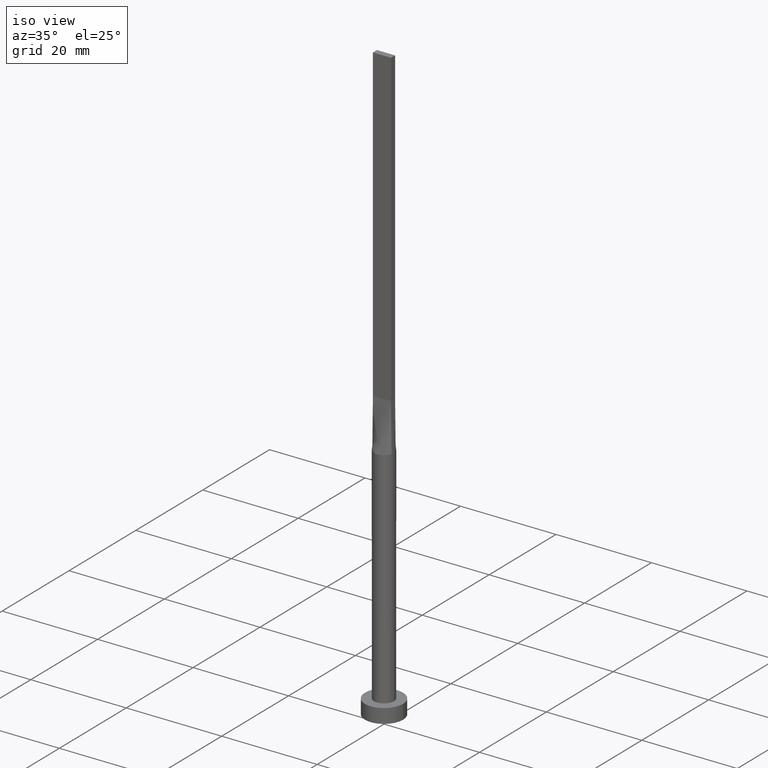
[diagram: clean part render]
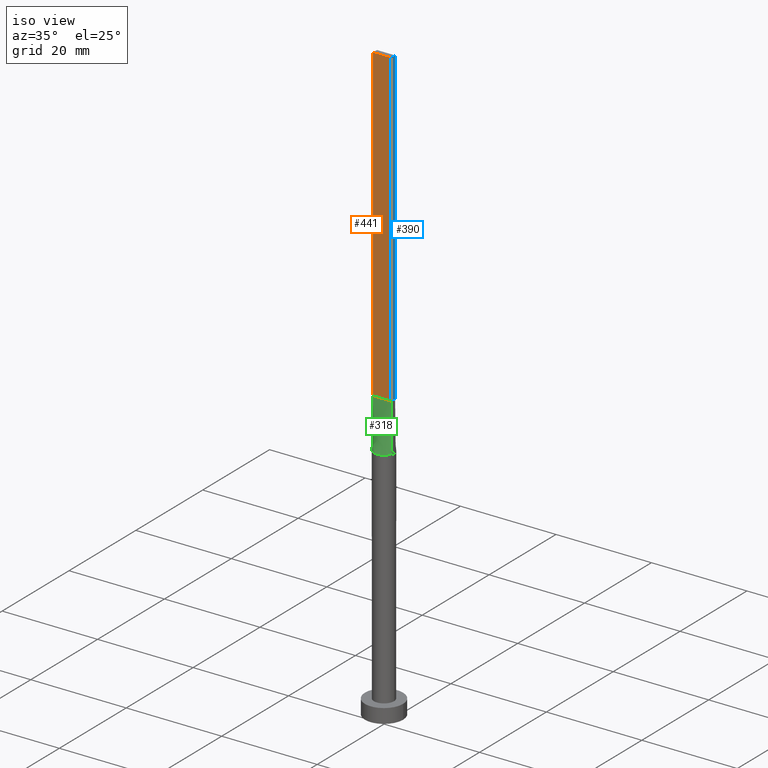
[diagram: same view with three faces highlighted in distinct colors, each labeled with its STEP entity id]
A machine part, iso view with three faces highlighted in distinct colors.
Their STEP definitions:

[orange] entity #441 — the highlighted planar face has unit normal (0, 1, -0).
#12 = DIRECTION ( 'NONE',  ( 5.706327223607920020E-17, 1.000000000000000000, -0.000000000000000000 ) ) ;
#26 = EDGE_CURVE ( 'NONE', #263, #111, #539, .T. ) ;
#39 = EDGE_CURVE ( 'NONE', #126, #111, #172, .T. ) ;
#46 = DIRECTION ( 'NONE',  ( -0.000000000000000000, -0.000000000000000000, -1.000000000000000000 ) ) ;
#73 = CARTESIAN_POINT ( 'NONE',  ( 1.899999999999999023, -0.5999999999999997558, 125.0000000000000000 ) ) ;
#88 = VECTOR ( 'NONE', #334, 1000.000000000000000 ) ;
#107 = AXIS2_PLACEMENT_3D ( 'NONE', #445, #12, #536 ) ;
#111 = VERTEX_POINT ( 'NONE', #363 ) ;
#126 = VERTEX_POINT ( 'NONE', #153 ) ;
#150 = ORIENTED_EDGE ( 'NONE', *, *, #325, .T. ) ;
#153 = CARTESIAN_POINT ( 'NONE',  ( -1.899999999999999911, -0.5999999999999995337, 60.00000000000000711 ) ) ;
#165 = VECTOR ( 'NONE', #494, 1000.000000000000000 ) ;
#172 = LINE ( 'NONE', #346, #165 ) ;
#184 = EDGE_LOOP ( 'NONE', ( #528, #189, #306, #150 ) ) ;
#189 = ORIENTED_EDGE ( 'NONE', *, *, #26, .F. ) ;
#230 = CARTESIAN_POINT ( 'NONE',  ( -1.899999999999999911, -0.5999999999999995337, 125.0000000000000000 ) ) ;
#263 = VERTEX_POINT ( 'NONE', #497 ) ;
#271 = CARTESIAN_POINT ( 'NONE',  ( -1.899999999999999911, -0.5999999999999995337, 125.0000000000000000 ) ) ;
#306 = ORIENTED_EDGE ( 'NONE', *, *, #486, .F. ) ;
#311 = LINE ( 'NONE', #230, #411 ) ;
#325 = EDGE_CURVE ( 'NONE', #576, #126, #531, .T. ) ;
#334 = DIRECTION ( 'NONE',  ( -0.000000000000000000, -0.000000000000000000, -1.000000000000000000 ) ) ;
#346 = CARTESIAN_POINT ( 'NONE',  ( -1.899999999999999911, -0.5999999999999995337, 60.00000000000000711 ) ) ;
#363 = CARTESIAN_POINT ( 'NONE',  ( 1.899999999999999023, -0.5999999999999997558, 60.00000000000000711 ) ) ;
#381 = FACE_OUTER_BOUND ( 'NONE', #184, .T. ) ;
#405 = DIRECTION ( 'NONE',  ( 1.000000000000000000, -5.706327223607920020E-17, 0.000000000000000000 ) ) ;
#411 = VECTOR ( 'NONE', #405, 1000.000000000000000 ) ;
#432 = PLANE ( 'NONE',  #107 ) ;
#441 = ADVANCED_FACE ( 'NONE', ( #381 ), #432, .F. ) ;
#445 = CARTESIAN_POINT ( 'NONE',  ( -1.899999999999999911, -0.5999999999999995337, 125.0000000000000000 ) ) ;
#469 = VECTOR ( 'NONE', #46, 1000.000000000000000 ) ;
#486 = EDGE_CURVE ( 'NONE', #576, #263, #311, .T. ) ;
#488 = CARTESIAN_POINT ( 'NONE',  ( -1.899999999999999911, -0.5999999999999995337, 125.0000000000000000 ) ) ;
#494 = DIRECTION ( 'NONE',  ( 1.000000000000000000, -5.706327223607918787E-17, 0.000000000000000000 ) ) ;
#497 = CARTESIAN_POINT ( 'NONE',  ( 1.899999999999999023, -0.5999999999999997558, 125.0000000000000000 ) ) ;
#528 = ORIENTED_EDGE ( 'NONE', *, *, #39, .T. ) ;
#531 = LINE ( 'NONE', #488, #469 ) ;
#536 = DIRECTION ( 'NONE',  ( -1.000000000000000000, 5.706327223607920020E-17, 0.000000000000000000 ) ) ;
#539 = LINE ( 'NONE', #73, #88 ) ;
#576 = VERTEX_POINT ( 'NONE', #271 ) ;

[blue] entity #390 — the highlighted planar face has unit normal (-1, 0, 0).
#1 = EDGE_CURVE ( 'NONE', #111, #281, #47, .T. ) ;
#26 = EDGE_CURVE ( 'NONE', #263, #111, #539, .T. ) ;
#41 = DIRECTION ( 'NONE',  ( -5.421010862427522170E-16, -1.000000000000000000, 0.000000000000000000 ) ) ;
#42 = EDGE_CURVE ( 'NONE', #263, #298, #336, .T. ) ;
#47 = LINE ( 'NONE', #474, #272 ) ;
#73 = CARTESIAN_POINT ( 'NONE',  ( 1.899999999999999023, -0.5999999999999997558, 125.0000000000000000 ) ) ;
#88 = VECTOR ( 'NONE', #334, 1000.000000000000000 ) ;
#101 = CARTESIAN_POINT ( 'NONE',  ( 1.899999999999999023, -0.5999999999999997558, 125.0000000000000000 ) ) ;
#109 = CARTESIAN_POINT ( 'NONE',  ( 1.899999999999999023, -0.5999999999999997558, 125.0000000000000000 ) ) ;
#111 = VERTEX_POINT ( 'NONE', #363 ) ;
#139 = VECTOR ( 'NONE', #181, 1000.000000000000000 ) ;
#147 = DIRECTION ( 'NONE',  ( -1.000000000000000000, 5.421010862427522170E-16, 0.000000000000000000 ) ) ;
#151 = CARTESIAN_POINT ( 'NONE',  ( 1.899999999999999689, 0.6000000000000001998, 60.00000000000000711 ) ) ;
#181 = DIRECTION ( 'NONE',  ( -0.000000000000000000, -0.000000000000000000, -1.000000000000000000 ) ) ;
#183 = LINE ( 'NONE', #414, #139 ) ;
#236 = CARTESIAN_POINT ( 'NONE',  ( 1.899999999999999689, 0.6000000000000001998, 125.0000000000000000 ) ) ;
#245 = DIRECTION ( 'NONE',  ( -1.807003620809174139E-16, 1.000000000000000000, -0.000000000000000000 ) ) ;
#263 = VERTEX_POINT ( 'NONE', #497 ) ;
#272 = VECTOR ( 'NONE', #245, 1000.000000000000000 ) ;
#281 = VERTEX_POINT ( 'NONE', #151 ) ;
#289 = PLANE ( 'NONE',  #580 ) ;
#290 = DIRECTION ( 'NONE',  ( 5.421010862427522170E-16, 1.000000000000000000, 0.000000000000000000 ) ) ;
#298 = VERTEX_POINT ( 'NONE', #236 ) ;
#303 = ORIENTED_EDGE ( 'NONE', *, *, #578, .F. ) ;
#316 = VECTOR ( 'NONE', #290, 1000.000000000000000 ) ;
#334 = DIRECTION ( 'NONE',  ( -0.000000000000000000, -0.000000000000000000, -1.000000000000000000 ) ) ;
#336 = LINE ( 'NONE', #109, #316 ) ;
#363 = CARTESIAN_POINT ( 'NONE',  ( 1.899999999999999023, -0.5999999999999997558, 60.00000000000000711 ) ) ;
#387 = ORIENTED_EDGE ( 'NONE', *, *, #42, .F. ) ;
#390 = ADVANCED_FACE ( 'NONE', ( #483 ), #289, .F. ) ;
#414 = CARTESIAN_POINT ( 'NONE',  ( 1.899999999999999689, 0.6000000000000001998, 125.0000000000000000 ) ) ;
#470 = EDGE_LOOP ( 'NONE', ( #498, #303, #387, #560 ) ) ;
#474 = CARTESIAN_POINT ( 'NONE',  ( 1.899999999999999689, 0.6000000000000001998, 60.00000000000000711 ) ) ;
#483 = FACE_OUTER_BOUND ( 'NONE', #470, .T. ) ;
#497 = CARTESIAN_POINT ( 'NONE',  ( 1.899999999999999023, -0.5999999999999997558, 125.0000000000000000 ) ) ;
#498 = ORIENTED_EDGE ( 'NONE', *, *, #1, .T. ) ;
#539 = LINE ( 'NONE', #73, #88 ) ;
#560 = ORIENTED_EDGE ( 'NONE', *, *, #26, .T. ) ;
#578 = EDGE_CURVE ( 'NONE', #298, #281, #183, .T. ) ;
#580 = AXIS2_PLACEMENT_3D ( 'NONE', #101, #147, #41 ) ;

[green] entity #318 — the highlighted face is a freeform B-spline surface patch.
#5 = CARTESIAN_POINT ( 'NONE',  ( -0.3166666666666642094, -0.5999999999999996447, 60.00000000000000000 ) ) ;
#7 = LINE ( 'NONE', #376, #448 ) ;
#10 = CARTESIAN_POINT ( 'NONE',  ( -1.266666666666664831, -0.5999999999999996447, 60.00000000000000000 ) ) ;
#13 = AXIS2_PLACEMENT_3D ( 'NONE', #572, #199, #297 ) ;
#20 = CARTESIAN_POINT ( 'NONE',  ( 0.3166666666666688168, -0.5999999999999996447, 60.00000000000000000 ) ) ;
#39 = EDGE_CURVE ( 'NONE', #126, #111, #172, .T. ) ;
#53 = CARTESIAN_POINT ( 'NONE',  ( -0.1583333333333310500, -0.5999999999999996447, 60.00000000000000000 ) ) ;
#61 = DIRECTION ( 'NONE',  ( -0.01025176717979719640, 0.003237400162041168764, 0.9999422085850171449 ) ) ;
#69 = CARTESIAN_POINT ( 'NONE',  ( 1.108333333333334281, -0.5999999999999996447, 60.00000000000000000 ) ) ;
#74 = CARTESIAN_POINT ( 'NONE',  ( 1.266666666666667274, -0.5999999999999996447, 60.00000000000000000 ) ) ;
#93 = B_SPLINE_SURFACE_WITH_KNOTS ( 'NONE', 3, 1, ( 
 ( #472, #239 ),
 ( #331, #425 ),
 ( #287, #246 ),
 ( #243, #10 ),
 ( #203, #375 ),
 ( #478, #383 ),
 ( #104, #95 ),
 ( #386, #5 ),
 ( #428, #53 ),
 ( #372, #249 ),
 ( #434, #20 ),
 ( #300, #447 ),
 ( #343, #491 ),
 ( #449, #69 ),
 ( #215, #74 ),
 ( #402, #349 ),
 ( #527, #110 ),
 ( #337, #332 ) ),
 .UNSPECIFIED., .F., .F., .F.,
 ( 4, 2, 2, 2, 2, 2, 2, 2, 4 ),
 ( 2, 2 ),
 ( 0.000000000000000000, 0.1250000000000000833, 0.2500000000000001110, 0.3750000000000001110, 0.5000000000000001110, 0.6250000000000001110, 0.7500000000000000000, 0.8750000000000000000, 1.000000000000000000 ),
 ( 0.000000000000000000, 1.000000000000000000 ),
 .UNSPECIFIED. ) ;
#95 = CARTESIAN_POINT ( 'NONE',  ( -0.6333333333333307502, -0.5999999999999996447, 60.00000000000000000 ) ) ;
#104 = CARTESIAN_POINT ( 'NONE',  ( -0.9765948449220485106, -1.875594675604967509, 50.00000000000000711 ) ) ;
#110 = CARTESIAN_POINT ( 'NONE',  ( 1.741666666666666030, -0.5999999999999997558, 60.00000000000000000 ) ) ;
#111 = VERTEX_POINT ( 'NONE', #363 ) ;
#126 = VERTEX_POINT ( 'NONE', #153 ) ;
#138 = VERTEX_POINT ( 'NONE', #553 ) ;
#146 = EDGE_CURVE ( 'NONE', #138, #328, #378, .T. ) ;
#153 = CARTESIAN_POINT ( 'NONE',  ( -1.899999999999999911, -0.5999999999999995337, 60.00000000000000711 ) ) ;
#165 = VECTOR ( 'NONE', #494, 1000.000000000000000 ) ;
#172 = LINE ( 'NONE', #346, #165 ) ;
#186 = ORIENTED_EDGE ( 'NONE', *, *, #146, .T. ) ;
#192 = CARTESIAN_POINT ( 'NONE',  ( 2.002626276893244128, -0.6324088233005202841, 50.00000000000000000 ) ) ;
#199 = DIRECTION ( 'NONE',  ( 0.000000000000000000, 0.000000000000000000, 1.000000000000000000 ) ) ;
#203 = CARTESIAN_POINT ( 'NONE',  ( -1.529462611013499229, -1.456669187245239749, 49.99999999999999289 ) ) ;
#215 = CARTESIAN_POINT ( 'NONE',  ( 1.667357759214464830, -1.291791096182927534, 50.00000000000000711 ) ) ;
#239 = CARTESIAN_POINT ( 'NONE',  ( -1.899999999999999911, -0.5999999999999995337, 60.00000000000000711 ) ) ;
#243 = CARTESIAN_POINT ( 'NONE',  ( -1.667357759214464386, -1.291791096182926424, 49.99999999999999289 ) ) ;
#244 = VECTOR ( 'NONE', #523, 1000.000000000000114 ) ;
#246 = CARTESIAN_POINT ( 'NONE',  ( -1.583333333333332149, -0.5999999999999995337, 60.00000000000000000 ) ) ;
#249 = CARTESIAN_POINT ( 'NONE',  ( 0.1583333333333354631, -0.5999999999999996447, 60.00000000000000000 ) ) ;
#254 = ORIENTED_EDGE ( 'NONE', *, *, #39, .F. ) ;
#287 = CARTESIAN_POINT ( 'NONE',  ( -1.878511276496548144, -0.9591670956957798477, 50.00000000000000000 ) ) ;
#297 = DIRECTION ( 'NONE',  ( 1.000000000000000000, 0.000000000000000000, 0.000000000000000000 ) ) ;
#300 = CARTESIAN_POINT ( 'NONE',  ( 0.9765948449220478444, -1.875594675604967954, 50.00000000000000711 ) ) ;
#301 = CARTESIAN_POINT ( 'NONE',  ( -1.951261798390848901, -0.6161879363339519688, 55.00000000000000711 ) ) ;
#318 = ADVANCED_FACE ( 'NONE', ( #517 ), #93, .T. ) ;
#328 = VERTEX_POINT ( 'NONE', #192 ) ;
#331 = CARTESIAN_POINT ( 'NONE',  ( -1.952271707612931895, -0.7915068550356626487, 50.00000000000000711 ) ) ;
#332 = CARTESIAN_POINT ( 'NONE',  ( 1.899999999999999023, -0.5999999999999997558, 60.00000000000000711 ) ) ;
#337 = CARTESIAN_POINT ( 'NONE',  ( 2.002523596781698334, -0.6323758726679041819, 50.00000000000000000 ) ) ;
#343 = CARTESIAN_POINT ( 'NONE',  ( 1.184262492297964320, -1.748903470433446961, 50.00000000000001421 ) ) ;
#346 = CARTESIAN_POINT ( 'NONE',  ( -1.899999999999999911, -0.5999999999999995337, 60.00000000000000711 ) ) ;
#349 = CARTESIAN_POINT ( 'NONE',  ( 1.583333333333333259, -0.5999999999999996447, 60.00000000000000000 ) ) ;
#363 = CARTESIAN_POINT ( 'NONE',  ( 1.899999999999999023, -0.5999999999999997558, 60.00000000000000711 ) ) ;
#369 = EDGE_CURVE ( 'NONE', #328, #111, #7, .T. ) ;
#372 = CARTESIAN_POINT ( 'NONE',  ( 0.2565105576742072735, -2.100000000000000533, 50.00000000000000711 ) ) ;
#375 = CARTESIAN_POINT ( 'NONE',  ( -1.108333333333331172, -0.5999999999999996447, 60.00000000000000000 ) ) ;
#376 = CARTESIAN_POINT ( 'NONE',  ( 1.951261798390848901, -0.6161879363339519688, 55.00000000000000711 ) ) ;
#378 = CIRCLE ( 'NONE', #13, 2.100000000000000089 ) ;
#383 = CARTESIAN_POINT ( 'NONE',  ( -0.7916666666666642982, -0.5999999999999996447, 60.00000000000000000 ) ) ;
#386 = CARTESIAN_POINT ( 'NONE',  ( -0.5124799074986365888, -2.051574327850738566, 50.00000000000000711 ) ) ;
#402 = CARTESIAN_POINT ( 'NONE',  ( 1.878511276496548366, -0.9591670956957810690, 50.00000000000000711 ) ) ;
#425 = CARTESIAN_POINT ( 'NONE',  ( -1.741666666666666030, -0.5999999999999995337, 60.00000000000000000 ) ) ;
#427 = EDGE_CURVE ( 'NONE', #126, #138, #436, .T. ) ;
#428 = CARTESIAN_POINT ( 'NONE',  ( -0.2565105576742081062, -2.100000000000000089, 50.00000000000000711 ) ) ;
#434 = CARTESIAN_POINT ( 'NONE',  ( 0.5124799074986360337, -2.051574327850739454, 50.00000000000000000 ) ) ;
#436 = LINE ( 'NONE', #301, #244 ) ;
#447 = CARTESIAN_POINT ( 'NONE',  ( 0.6333333333333351911, -0.5999999999999996447, 60.00000000000000000 ) ) ;
#448 = VECTOR ( 'NONE', #61, 1000.000000000000114 ) ;
#449 = CARTESIAN_POINT ( 'NONE',  ( 1.529462611013499229, -1.456669187245239971, 50.00000000000000711 ) ) ;
#472 = CARTESIAN_POINT ( 'NONE',  ( -2.002523596781697890, -0.6323758726679042930, 50.00000000000000000 ) ) ;
#478 = CARTESIAN_POINT ( 'NONE',  ( -1.184262492297964098, -1.748903470433446294, 49.99999999999999289 ) ) ;
#491 = CARTESIAN_POINT ( 'NONE',  ( 0.7916666666666681840, -0.5999999999999996447, 60.00000000000000000 ) ) ;
#494 = DIRECTION ( 'NONE',  ( 1.000000000000000000, -5.706327223607918787E-17, 0.000000000000000000 ) ) ;
#495 = ORIENTED_EDGE ( 'NONE', *, *, #369, .T. ) ;
#509 = ORIENTED_EDGE ( 'NONE', *, *, #427, .T. ) ;
#517 = FACE_OUTER_BOUND ( 'NONE', #566, .T. ) ;
#523 = DIRECTION ( 'NONE',  ( -0.01025176717979706630, -0.003237400162041201290, -0.9999422085850171449 ) ) ;
#527 = CARTESIAN_POINT ( 'NONE',  ( 1.952271707612932339, -0.7915068550356634258, 50.00000000000000711 ) ) ;
#553 = CARTESIAN_POINT ( 'NONE',  ( -2.002601997802567535, -0.6324010168594718095, 50.00000000000000000 ) ) ;
#566 = EDGE_LOOP ( 'NONE', ( #186, #495, #254, #509 ) ) ;
#572 = CARTESIAN_POINT ( 'NONE',  ( 0.000000000000000000, 0.000000000000000000, 50.00000000000000000 ) ) ;